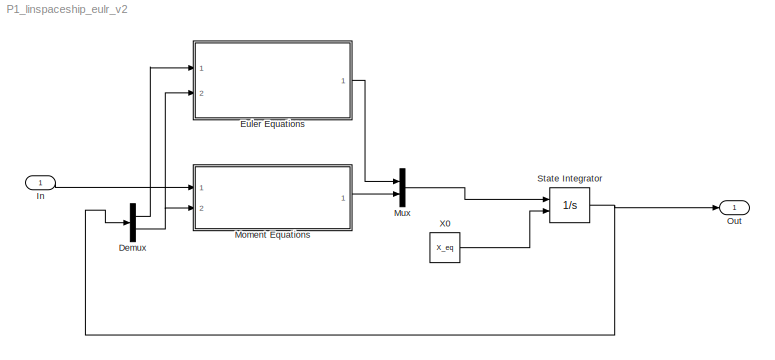
MODEL P1_linspaceship_eulr_v2
KIND model
BLOCK [Demux] Demux
  DisplayOption = bar
  Outputs = 2
  Ports = [1, 2]
  SID = 3949
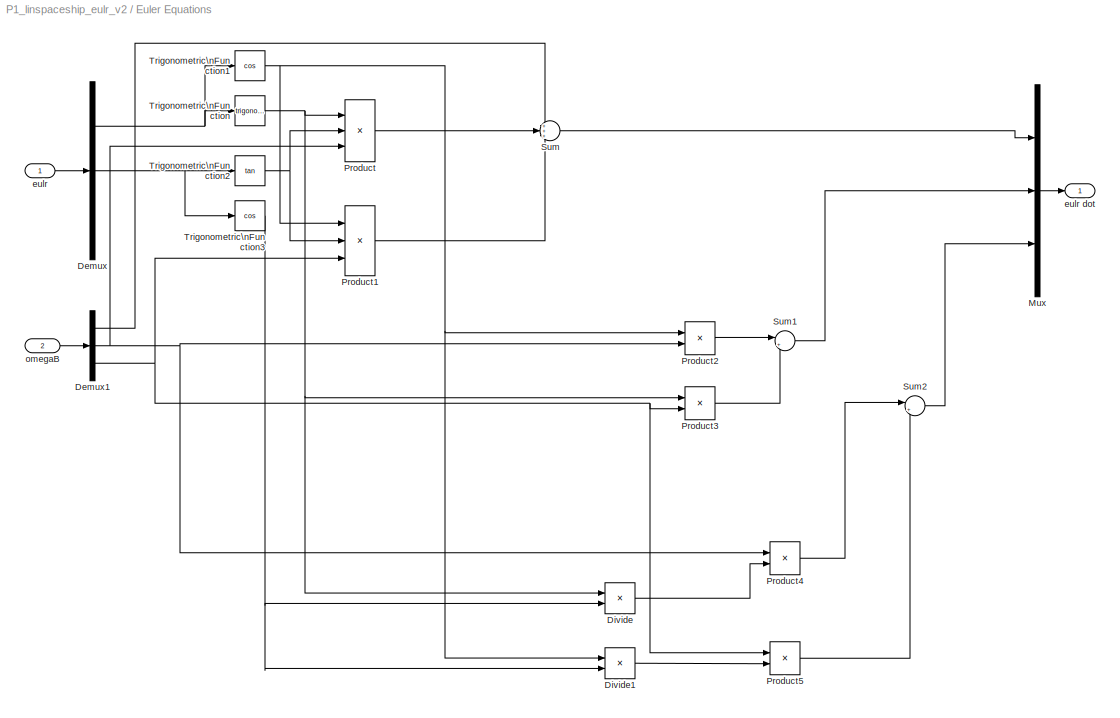
BLOCK [SubSystem] Euler  Equations
  FunctionWithSeparateData = off
  MaskHideContents = off
  MinAlgLoopOccurrences = off
  Opaque = off
  Ports = [2, 1]
  PropExecContextOutsideSubsystem = off
  RTWSystemCode = Auto
  RequestExecContextInheritance = off
  SID = 3951
BLOCK [Demux] Euler  Equations/Demux
  DisplayOption = bar
  Outputs = 3
  Ports = [1, 3]
  SID = 4032
BLOCK [Demux] Euler  Equations/Demux1
  DisplayOption = bar
  Outputs = 3
  Ports = [1, 3]
  SID = 4035
BLOCK [Product] Euler  Equations/Divide
  InputSameDT = off
  Inputs = */
  OutDataTypeStr = Inherit: Inherit via internal rule
  Ports = [2, 1]
  RndMeth = Floor
  SID = 4043
  SaturateOnIntegerOverflow = off
BLOCK [Product] Euler  Equations/Divide1
  InputSameDT = off
  Inputs = */
  OutDataTypeStr = Inherit: Inherit via internal rule
  Ports = [2, 1]
  RndMeth = Floor
  SID = 4046
  SaturateOnIntegerOverflow = off
BLOCK [Mux] Euler  Equations/Mux
  DisplayOption = bar
  Inputs = 3
  Ports = [3, 1]
  SID = 4033
BLOCK [Product] Euler  Equations/Product
  InputSameDT = off
  Inputs = 3
  OutDataTypeStr = Inherit: Inherit via internal rule
  Ports = [3, 1]
  SID = 4037
  SaturateOnIntegerOverflow = off
BLOCK [Product] Euler  Equations/Product1
  InputSameDT = off
  Inputs = 3
  OutDataTypeStr = Inherit: Inherit via internal rule
  Ports = [3, 1]
  SID = 4039
  SaturateOnIntegerOverflow = off
BLOCK [Product] Euler  Equations/Product2
  InputSameDT = off
  OutDataTypeStr = Inherit: Inherit via internal rule
  Ports = [2, 1]
  SID = 4040
  SaturateOnIntegerOverflow = off
BLOCK [Product] Euler  Equations/Product3
  InputSameDT = off
  OutDataTypeStr = Inherit: Inherit via internal rule
  Ports = [2, 1]
  SID = 4042
  SaturateOnIntegerOverflow = off
BLOCK [Product] Euler  Equations/Product4
  InputSameDT = off
  OutDataTypeStr = Inherit: Inherit via internal rule
  Ports = [2, 1]
  SID = 4045
  SaturateOnIntegerOverflow = off
BLOCK [Product] Euler  Equations/Product5
  InputSameDT = off
  OutDataTypeStr = Inherit: Inherit via internal rule
  Ports = [2, 1]
  SID = 4050
  SaturateOnIntegerOverflow = off
BLOCK [Sum] Euler  Equations/Sum
  IconShape = round
  InputSameDT = off
  Inputs = +++
  OutDataTypeStr = Inherit: Inherit via internal rule
  Ports = [3, 1]
  SID = 4038
  SaturateOnIntegerOverflow = off
BLOCK [Sum] Euler  Equations/Sum1
  IconShape = round
  InputSameDT = off
  Inputs = |+-
  OutDataTypeStr = Inherit: Inherit via internal rule
  Ports = [2, 1]
  SID = 4041
  SaturateOnIntegerOverflow = off
BLOCK [Sum] Euler  Equations/Sum2
  IconShape = round
  InputSameDT = off
  Inputs = |++
  OutDataTypeStr = Inherit: Inherit via internal rule
  Ports = [2, 1]
  SID = 4047
  SaturateOnIntegerOverflow = off
BLOCK [Trigonometry] Euler  Equations/Trigonometric\nFunction
  Ports = [1, 1]
  SID = 4030
BLOCK [Trigonometry] Euler  Equations/Trigonometric\nFunction1
  Operator = cos
  Ports = [1, 1]
  SID = 4031
BLOCK [Trigonometry] Euler  Equations/Trigonometric\nFunction2
  Operator = tan
  Ports = [1, 1]
  SID = 4034
BLOCK [Trigonometry] Euler  Equations/Trigonometric\nFunction3
  Operator = cos
  Ports = [1, 1]
  SID = 4044
BLOCK [Inport] Euler  Equations/eulr
  IconDisplay = Port number
  SID = 3952
BLOCK [Outport] Euler  Equations/eulr dot
  IconDisplay = Port number
  SID = 3969
BLOCK [Inport] Euler  Equations/omegaB
  IconDisplay = Port number
  Port = 2
  SID = 3953
BLOCK [Inport] In
  IconDisplay = Port number
  SID = 3633
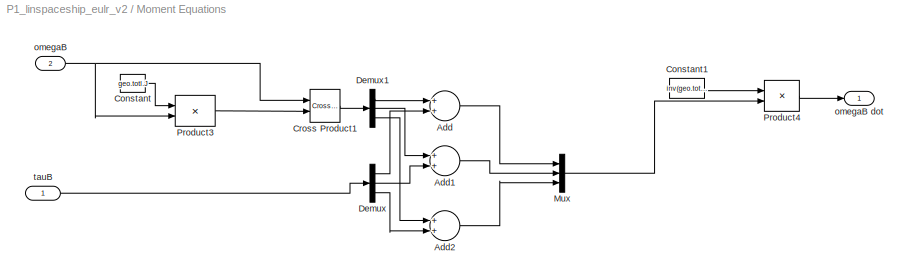
BLOCK [SubSystem] Moment Equations
  FunctionWithSeparateData = off
  MaskHideContents = off
  MinAlgLoopOccurrences = off
  Opaque = off
  Ports = [2, 1]
  PropExecContextOutsideSubsystem = off
  RTWSystemCode = Auto
  RequestExecContextInheritance = off
  SID = 3928
BLOCK [Sum] Moment Equations/Add
  InputSameDT = off
  OutDataTypeStr = Inherit: Inherit via internal rule
  Ports = [2, 1]
  SID = 3948
  SaturateOnIntegerOverflow = off
BLOCK [Sum] Moment Equations/Add1
  InputSameDT = off
  OutDataTypeStr = Inherit: Inherit via internal rule
  Ports = [2, 1]
  SID = 3973
  SaturateOnIntegerOverflow = off
BLOCK [Sum] Moment Equations/Add2
  InputSameDT = off
  OutDataTypeStr = Inherit: Inherit via internal rule
  Ports = [2, 1]
  SID = 3974
  SaturateOnIntegerOverflow = off
BLOCK [Constant] Moment Equations/Constant
  SID = 3939
  Value = geo.totl.J
BLOCK [Constant] Moment Equations/Constant1
  SID = 3940
  Value = inv(geo.totl.J)
BLOCK [Reference] Moment Equations/Cross Product1  REF=vrlib/Utilities/Cross Product
  Ports = [2, 1]
  SID = 3933
  SourceBlock = vrlib/Utilities/Cross Product
  SourceType = Cross Product
BLOCK [Demux] Moment Equations/Demux
  DisplayOption = bar
  Outputs = 3
  Ports = [1, 3]
  SID = 3970
BLOCK [Demux] Moment Equations/Demux1
  DisplayOption = bar
  Outputs = 3
  Ports = [1, 3]
  SID = 3971
BLOCK [Mux] Moment Equations/Mux
  DisplayOption = bar
  Inputs = 3
  Ports = [3, 1]
  SID = 3972
BLOCK [Product] Moment Equations/Product3
  InputSameDT = off
  Multiplication = Matrix(*)
  OutDataTypeStr = Inherit: Inherit via internal rule
  Ports = [2, 1]
  SID = 3934
  SaturateOnIntegerOverflow = off
BLOCK [Product] Moment Equations/Product4
  InputSameDT = off
  Multiplication = Matrix(*)
  OutDataTypeStr = Inherit: Inherit via internal rule
  Ports = [2, 1]
  SID = 3935
  SaturateOnIntegerOverflow = off
BLOCK [Inport] Moment Equations/omegaB
  IconDisplay = Port number
  Port = 2
  SID = 3932
BLOCK [Outport] Moment Equations/omegaB dot
  IconDisplay = Port number
  SID = 3937
BLOCK [Inport] Moment Equations/tauB
  IconDisplay = Port number
  OutDataTypeStr = double
  SID = 3943
BLOCK [Mux] Mux
  DisplayOption = bar
  Inputs = 2
  Ports = [2, 1]
  SID = 3950
BLOCK [Outport] Out
  IconDisplay = Port number
  SID = 3634
BLOCK [Integrator] State Integrator
  InitialConditionSource = external
  Ports = [2, 1]
  SID = 2650
BLOCK [Constant] X0
  SID = 3053
  Value = X_eq
LINE Demux:1 -> Euler  Equations:1
NET Demux:2 -> Euler  Equations:2, Moment Equations:2
LINE Euler  Equations/Demux1:1 -> Euler  Equations/Sum:1
NET Euler  Equations/Demux1:2 -> Euler  Equations/Product2:2, Euler  Equations/Product4:1, Euler  Equations/Product:3
NET Euler  Equations/Demux1:3 -> Euler  Equations/Product1:3, Euler  Equations/Product3:2, Euler  Equations/Product5:1
NET Euler  Equations/Demux:1 -> Euler  Equations/Trigonometric\nFunction1:1, Euler  Equations/Trigonometric\nFunction:1
NET Euler  Equations/Demux:2 -> Euler  Equations/Trigonometric\nFunction2:1, Euler  Equations/Trigonometric\nFunction3:1
LINE Euler  Equations/Divide1:1 -> Euler  Equations/Product5:2
LINE Euler  Equations/Divide:1 -> Euler  Equations/Product4:2
LINE Euler  Equations/Mux:1 -> Euler  Equations/eulr dot:1
LINE Euler  Equations/Product1:1 -> Euler  Equations/Sum:3
LINE Euler  Equations/Product2:1 -> Euler  Equations/Sum1:1
LINE Euler  Equations/Product3:1 -> Euler  Equations/Sum1:2
LINE Euler  Equations/Product4:1 -> Euler  Equations/Sum2:1
LINE Euler  Equations/Product5:1 -> Euler  Equations/Sum2:2
LINE Euler  Equations/Product:1 -> Euler  Equations/Sum:2
LINE Euler  Equations/Sum1:1 -> Euler  Equations/Mux:2
LINE Euler  Equations/Sum2:1 -> Euler  Equations/Mux:3
LINE Euler  Equations/Sum:1 -> Euler  Equations/Mux:1
NET Euler  Equations/Trigonometric\nFunction1:1 -> Euler  Equations/Divide1:1, Euler  Equations/Product1:1, Euler  Equations/Product2:1
NET Euler  Equations/Trigonometric\nFunction2:1 -> Euler  Equations/Product1:2, Euler  Equations/Product:2
NET Euler  Equations/Trigonometric\nFunction3:1 -> Euler  Equations/Divide1:2, Euler  Equations/Divide:2
NET Euler  Equations/Trigonometric\nFunction:1 -> Euler  Equations/Divide:1, Euler  Equations/Product3:1, Euler  Equations/Product:1
LINE Euler  Equations/eulr:1 -> Euler  Equations/Demux:1
LINE Euler  Equations/omegaB:1 -> Euler  Equations/Demux1:1
LINE Euler  Equations:1 -> Mux:1
LINE In:1 -> Moment Equations:1
LINE Moment Equations/Add1:1 -> Moment Equations/Mux:2
LINE Moment Equations/Add2:1 -> Moment Equations/Mux:3
LINE Moment Equations/Add:1 -> Moment Equations/Mux:1
LINE Moment Equations/Constant1:1 -> Moment Equations/Product4:1
LINE Moment Equations/Constant:1 -> Moment Equations/Product3:1
LINE Moment Equations/Cross Product1:1 -> Moment Equations/Demux1:1
LINE Moment Equations/Demux1:1 -> Moment Equations/Add:1
LINE Moment Equations/Demux1:2 -> Moment Equations/Add1:1
LINE Moment Equations/Demux1:3 -> Moment Equations/Add2:1
LINE Moment Equations/Demux:1 -> Moment Equations/Add:2
LINE Moment Equations/Demux:2 -> Moment Equations/Add1:2
LINE Moment Equations/Demux:3 -> Moment Equations/Add2:2
LINE Moment Equations/Mux:1 -> Moment Equations/Product4:2
LINE Moment Equations/Product3:1 -> Moment Equations/Cross Product1:2
LINE Moment Equations/Product4:1 -> Moment Equations/omegaB dot:1
NET Moment Equations/omegaB:1 -> Moment Equations/Cross Product1:1, Moment Equations/Product3:2
LINE Moment Equations/tauB:1 -> Moment Equations/Demux:1
LINE Moment Equations:1 -> Mux:2
LINE Mux:1 -> State Integrator:1
NET State Integrator:1 -> Demux:1, Out:1
LINE X0:1 -> State Integrator:2
note: NET lines group one-source signal fan-out (src -> all destinations, sorted); 1:1 wires keep LINE
